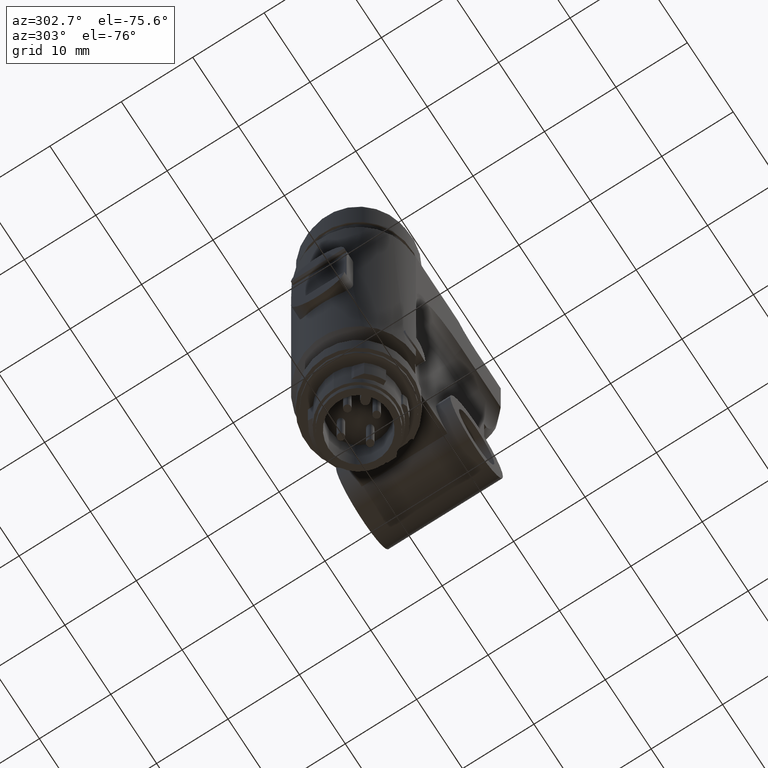
[diagram: clean part render]
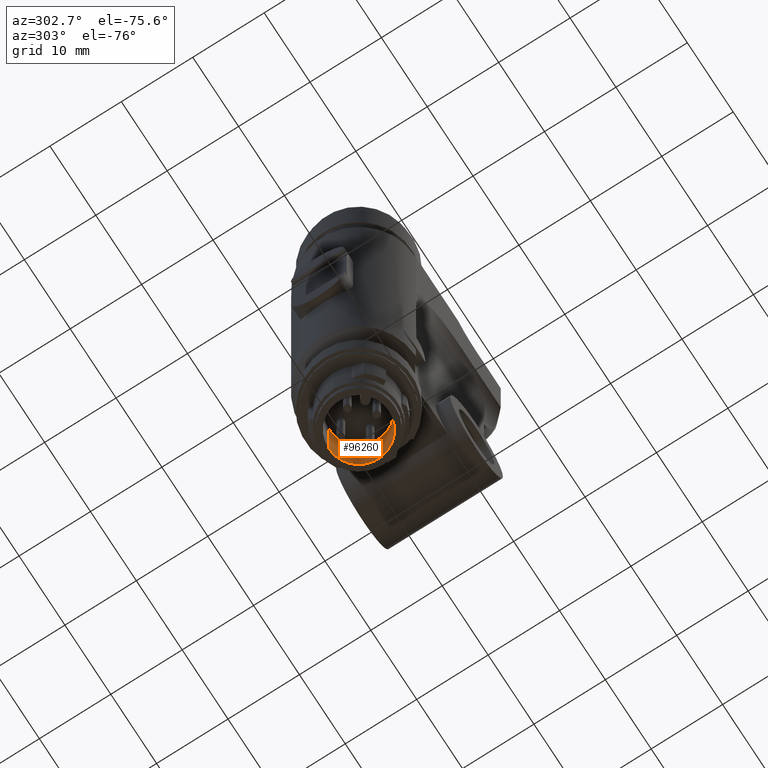
[diagram: same view with one face highlighted and labeled with its STEP entity id]
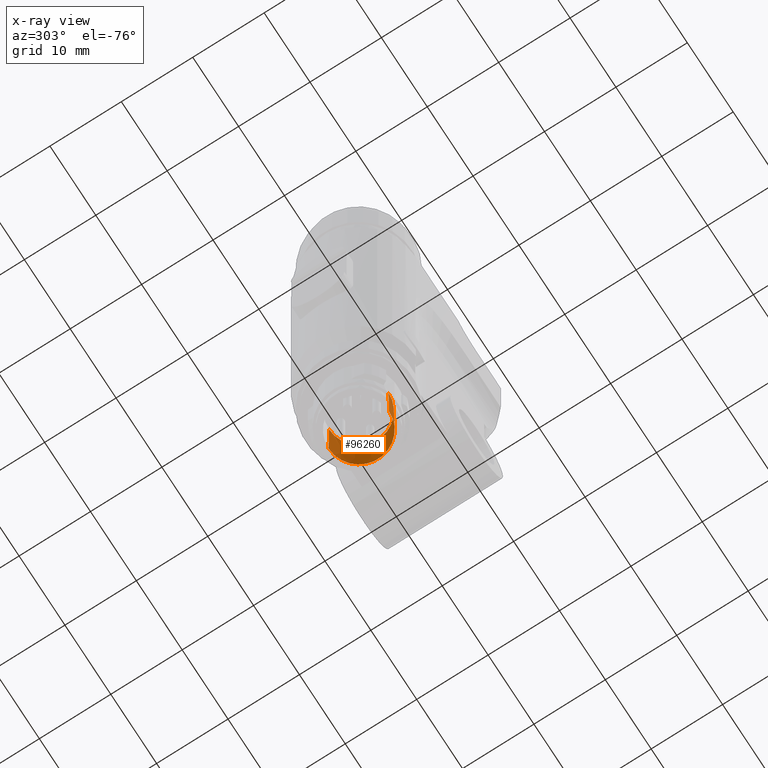
[diagram: x-ray of the same camera — body ghosted, the highlighted face saturated]
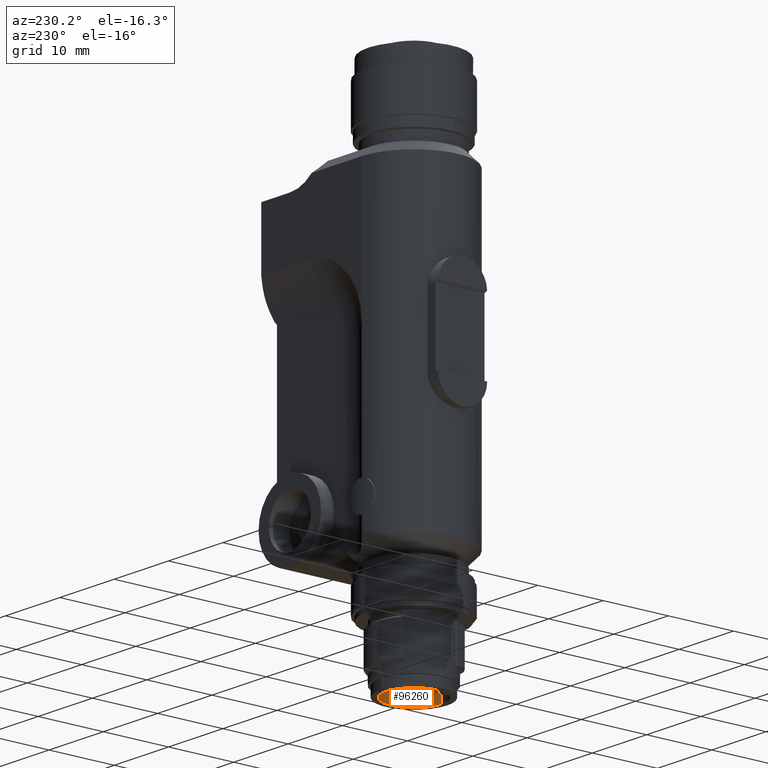
[diagram: same view with one face highlighted and labeled with its STEP entity id]
A machine part, auxiliary view. The second image highlights one B-rep face of the part: STEP entity #96260.
The next image is the same camera in x-ray: the body ghosted, the highlighted face saturated — about 0% of this face is hidden behind the body in this view.
A second angle (auxiliary view) of the same face is appended — the face is thin or edge-on in the first view.
In plain terms, the highlighted conical surface has half-angle 0.5 deg.
Its self-contained STEP definition (entity closure, byte-faithful):
#48770=CARTESIAN_POINT('',(-7.8159700933611E-14,-1.86517468137026E-14,
-16.5000000000002));
#48780=DIRECTION('',(1.22124532708767E-15,4.78783679369599E-16,-1.));
#48790=DIRECTION('',(-0.99999639415828,-0.00268545535036106,
-1.16573417585641E-15));
#48800=AXIS2_PLACEMENT_3D('',#48770,#48780,#48790);
#48810=CIRCLE('',#48800,4.22766912333775);
#48820=CARTESIAN_POINT('',(-0.445973989507202,4.20408056739002,
-16.5000000000002));
#48830=VERTEX_POINT('',#48820);
#48840=CARTESIAN_POINT('',(4.22765387903198,0.0113532166668048,
-16.5000000000002));
#48850=VERTEX_POINT('',#48840);
#48860=EDGE_CURVE('',#48830,#48850,#48810,.T.);
#48880=CARTESIAN_POINT('',(-4.22765387903213,-0.0113532166668432,
-16.5000000000002));
#48890=VERTEX_POINT('',#48880);
#48920=EDGE_CURVE('',#48890,#48830,#48810,.T.);
#49790=CARTESIAN_POINT('',(-8.5265128291212E-14,-2.44249065417534E-14,
-7.60000000000016));
#49800=DIRECTION('',(1.22124532708767E-15,4.78783679369599E-16,-1.));
#49810=DIRECTION('',(-0.99999639415828,-0.00268545535036106,
-1.16573417585641E-15));
#49820=AXIS2_PLACEMENT_3D('',#49790,#49800,#49810);
#49830=CIRCLE('',#49820,4.15);
#49840=CARTESIAN_POINT('',(-4.14998503575695,-0.0111446397040229,
-7.60000000000017));
#49850=VERTEX_POINT('',#49840);
#49880=CARTESIAN_POINT('',(-4.14998503575695,-0.0111446397040229,
-7.60000000000017));
#49890=DIRECTION('',(-0.00872650403186704,-2.34347214436667E-5,
-0.999961923064171));
#49900=VECTOR('',#49890,475.561005942541);
#49910=LINE('',#49880,#49900);
#49920=EDGE_CURVE('',#49850,#48890,#49910,.T.);
#49950=CARTESIAN_POINT('',(4.14998503575678,0.0111446397039746,
-7.60000000000016));
#49960=DIRECTION('',(0.00872650403186928,2.34347214447827E-5,
-0.999961923064171));
#49970=VECTOR('',#49960,475.561005942541);
#49980=LINE('',#49950,#49970);
#49990=CARTESIAN_POINT('',(4.14998503575678,0.0111446397039746,
-7.60000000000016));
#50000=VERTEX_POINT('',#49990);
#50010=EDGE_CURVE('',#50000,#48850,#49980,.T.);
#50800=EDGE_CURVE('',#49850,#50000,#49830,.T.);
#96140=CARTESIAN_POINT('',(-8.5265128291212E-14,-2.44249065417534E-14,
-7.60000000000016));
#96150=DIRECTION('',(1.12062876771008E-15,5.57512811935765E-16,-1.));
#96160=DIRECTION('',(-0.99999639415828,-0.00268545535036108,
-1.11022302462516E-15));
#96170=AXIS2_PLACEMENT_3D('',#96140,#96150,#96160);
#96180=CONICAL_SURFACE('',#96170,4.15,0.00872664625997165);
#96190=ORIENTED_EDGE('',*,*,#49920,.T.);
#96200=ORIENTED_EDGE('',*,*,#50800,.F.);
#96210=ORIENTED_EDGE('',*,*,#50010,.F.);
#96220=ORIENTED_EDGE('',*,*,#48860,.T.);
#96230=ORIENTED_EDGE('',*,*,#48920,.T.);
#96240=EDGE_LOOP('',(#96230,#96220,#96210,#96200,#96190));
#96250=FACE_OUTER_BOUND('',#96240,.T.);
#96260=ADVANCED_FACE('',(#96250),#96180,.F.);